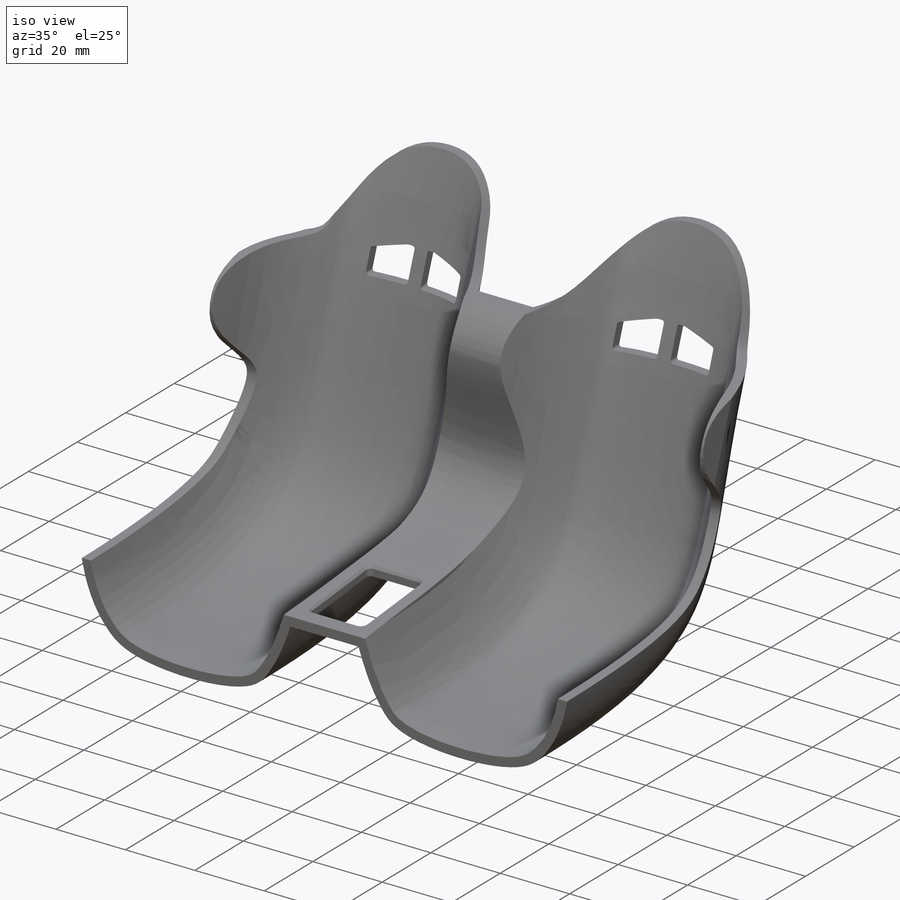
[diagram: iso view]
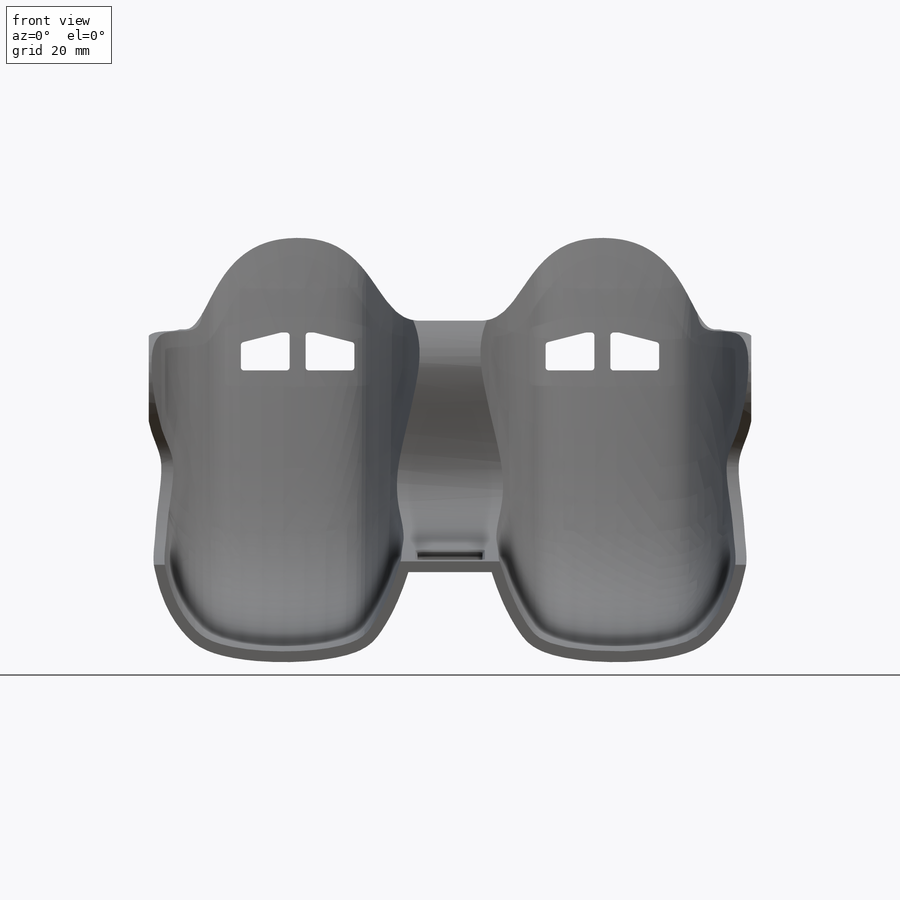
[diagram: front view]
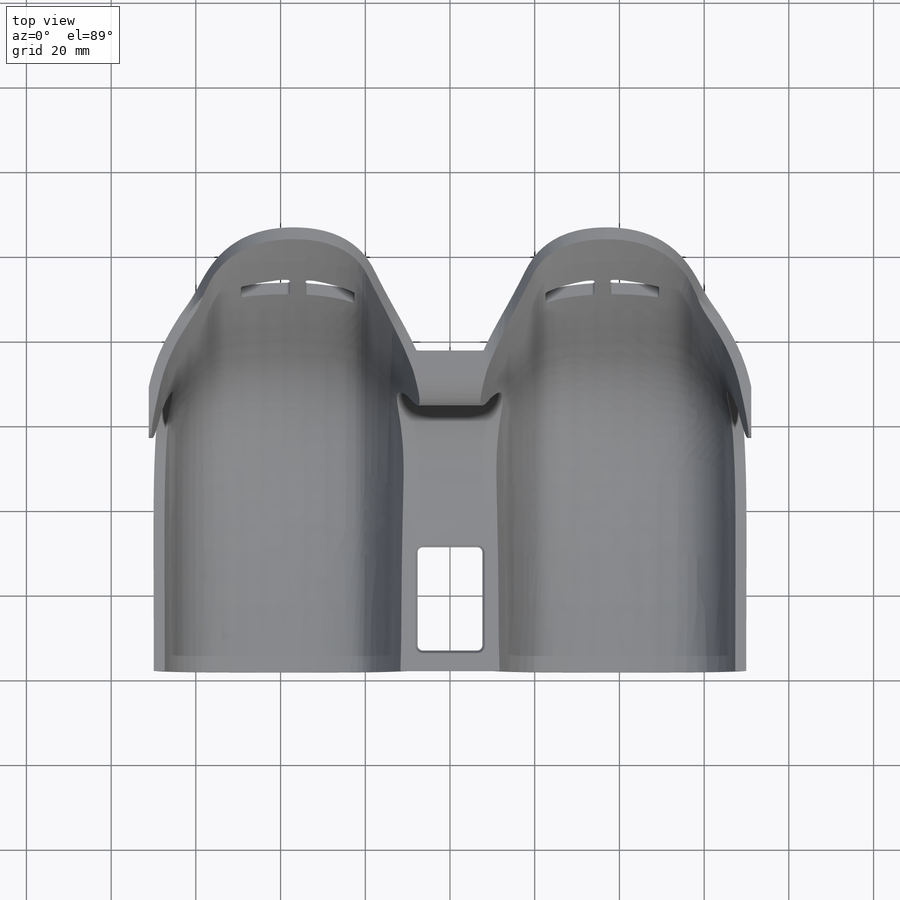
[diagram: top view]
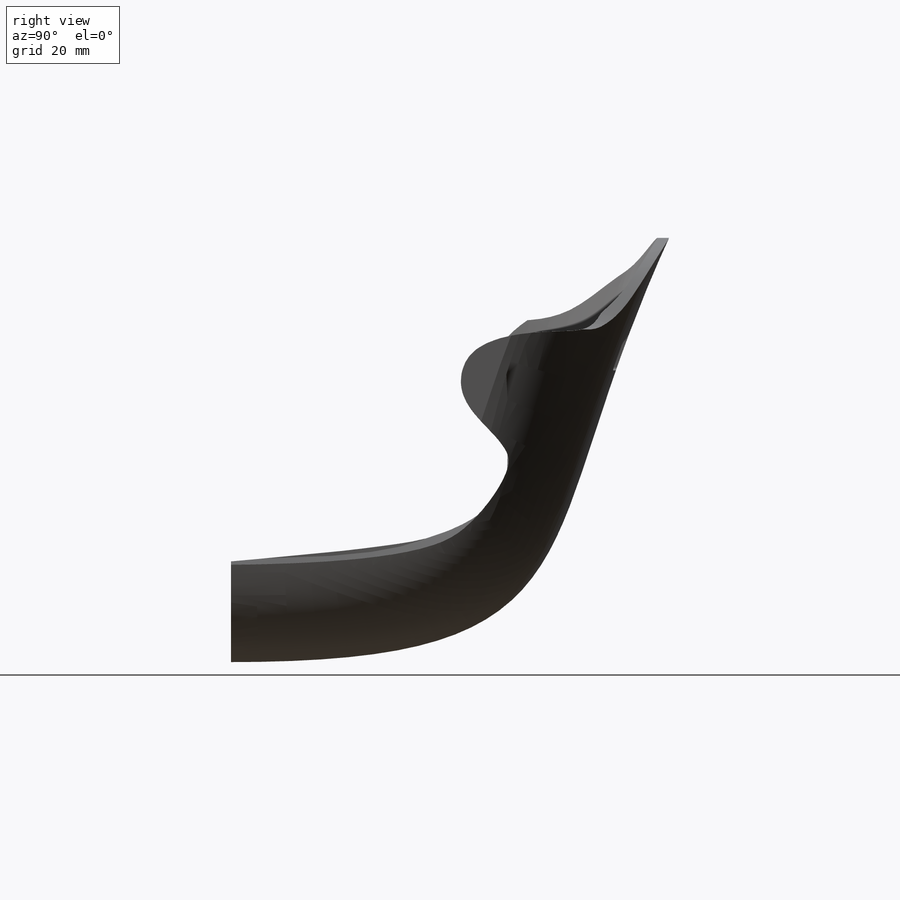
[diagram: right view]
SOLIDWORKS PART (.sldprt)
format: sldprt  version: not decoded by parser v0  size: 831,488 bytes
history: native  units: mm
features: sketch x11, cut_extrude x4, material x1, plane x1, extrude x1, shell x1, chamfer x1, mirror x1 (+11 scaffold rows collapsed)
feature tree (32):
  scaffold x11  (default folders/planes/origin — collapsed)
  material  "ABS"
  plane  "Plane1"  Offset=15.24mm
  sketch  "3DSketch1"  dims[D1=38.1mm]
  sketch  "Sketch4"
  sketch  "Sketch1"  dims[D1=63.5mm]
  sketch  "Sketch2"  dims[D1=~44.302287mm]
  sketch  "Sketch3"
  sketch  "Sketch7"  dims[D1=71.12mm]
  extrude  "Boss-Extrude1"  Depth=20.32mm
  sketch  "Sketch5"
  sketch  "Sketch6"  dims[D1=0.762mm]
  cut_extrude  "Cut-Extrude2"  [1 undecoded]
  cut_extrude  "Cut-Extrude4"  Depth=33.02mm
  sketch  "3DSketch2"  dims[D1=38.1mm]
  cut_extrude  "Cut-Extrude5"  Depth=40.64mm
  sketch  "3DSketch3"  dims[D1=35.56mm]
  shell  "Shell2"  Thickness=2.54mm
  sketch  "Sketch9"  dims[D1=1.27mm]
  cut_extrude  "Cut-Extrude6"  [1 undecoded]
  chamfer  "Chamfer1"  Distance=0.508mm Angle=45deg
  mirror  "Mirror1"
decode coverage: 13 of 19 modeling features carry decoded parameters
note: ~ marks probable driven/reference dimensions
note: 2 parameter values undecoded
note: suppression state not decoded; provenance and decode notes live in map.json
